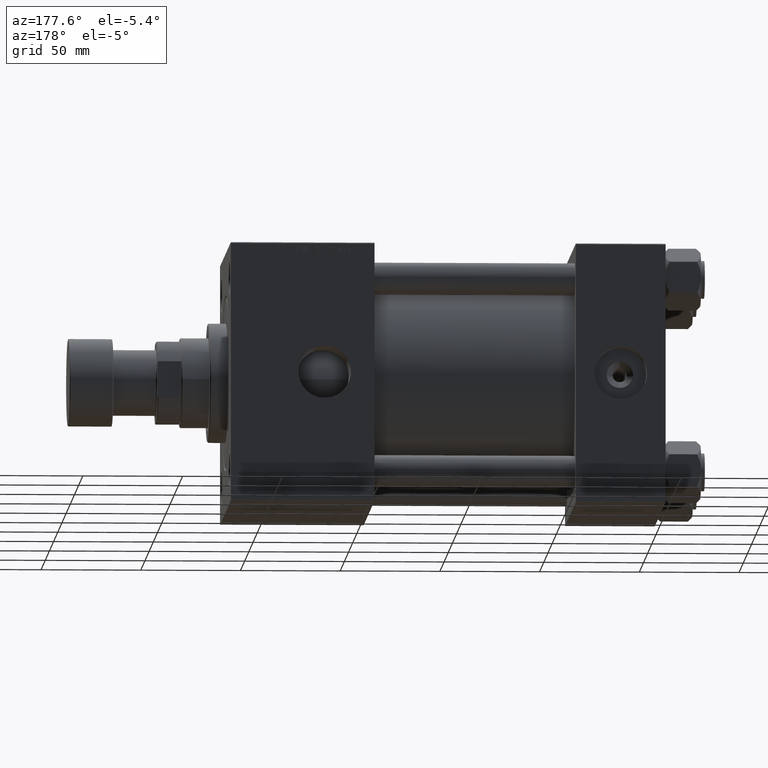
[diagram: clean part render]
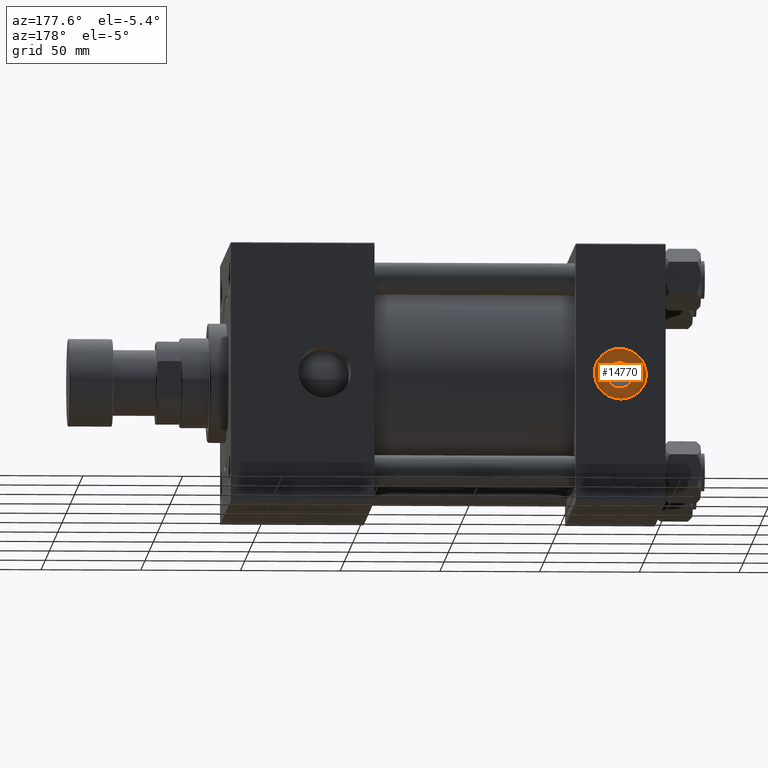
[diagram: same view with one face highlighted and labeled with its STEP entity id]
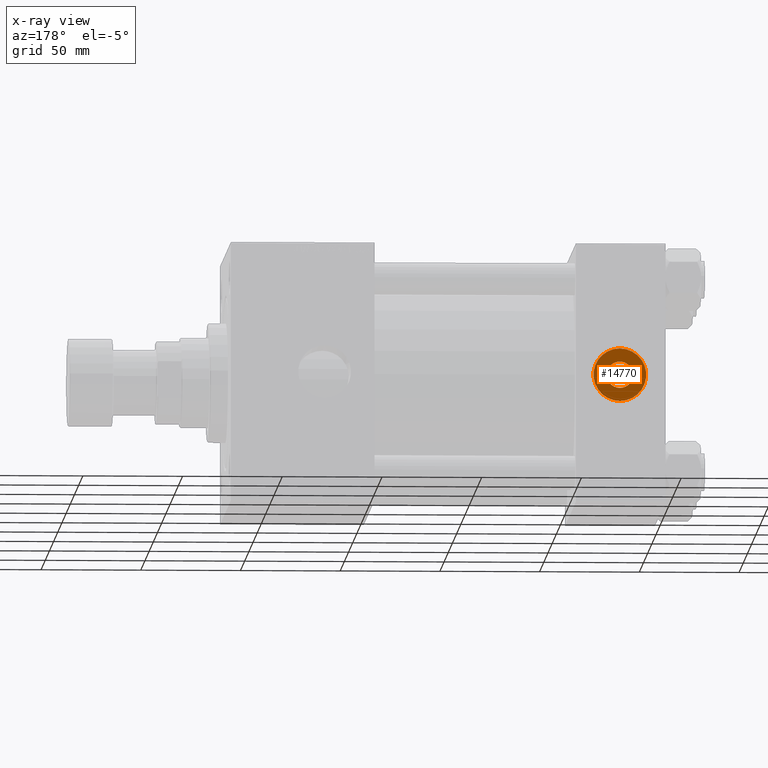
[diagram: x-ray of the same camera — body ghosted, the highlighted face saturated]
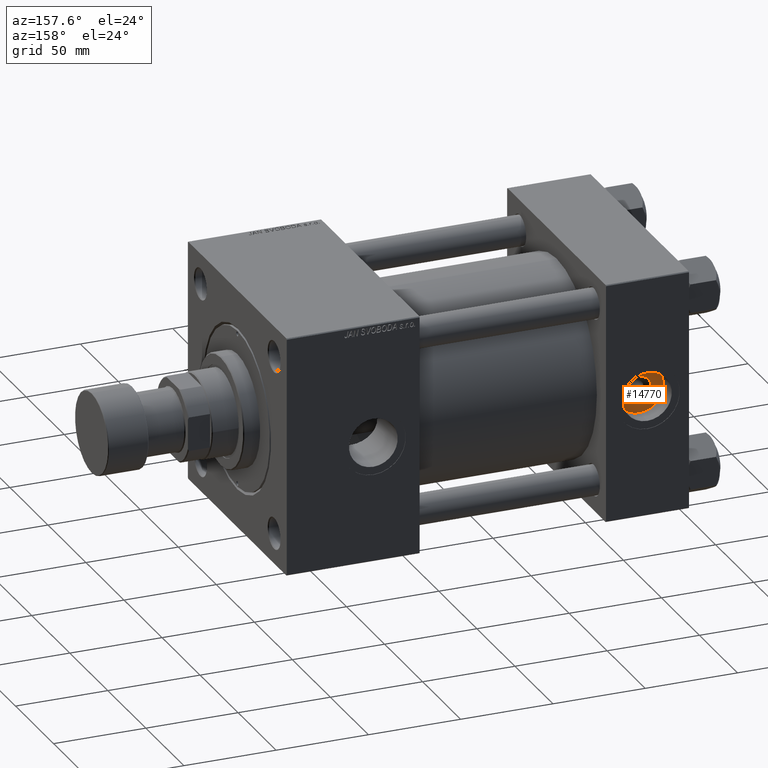
[diagram: same view with one face highlighted and labeled with its STEP entity id]
A machine part, auxiliary view. The second image highlights one B-rep face of the part: STEP entity #14770.
The next image is the same camera in x-ray: the body ghosted, the highlighted face saturated — about 0% of this face is hidden behind the body in this view.
A second angle (auxiliary view) of the same face is appended — the face is thin or edge-on in the first view.
In plain terms, the highlighted planar face has unit normal (0, 1, 0).
Its self-contained STEP definition (entity closure, byte-faithful):
#184 = DIRECTION ( 'NONE',  ( 0.000000000000000000, 0.000000000000000000, 1.000000000000000000 ) ) ;
#1895 = EDGE_CURVE ( 'NONE', #12275, #6060, #15770, .T. ) ;
#3516 = AXIS2_PLACEMENT_3D ( 'NONE', #21446, #17317, #33085 ) ;
#3756 = EDGE_CURVE ( 'NONE', #23208, #47187, #41488, .T. ) ;
#4254 = CARTESIAN_POINT ( 'NONE',  ( 22.50000000000000000, 53.99999999999999289, -13.22000000000000419 ) ) ;
#4735 = ORIENTED_EDGE ( 'NONE', *, *, #1895, .T. ) ;
#5101 = DIRECTION ( 'NONE',  ( -0.000000000000000000, -1.000000000000000000, -0.000000000000000000 ) ) ;
#5355 = CARTESIAN_POINT ( 'NONE',  ( 22.50000000000000000, 53.99999999999999289, 0.000000000000000000 ) ) ;
#5614 = ORIENTED_EDGE ( 'NONE', *, *, #42098, .T. ) ;
#6060 = VERTEX_POINT ( 'NONE', #16334 ) ;
#6414 = DIRECTION ( 'NONE',  ( -0.000000000000000000, -1.000000000000000000, -0.000000000000000000 ) ) ;
#6431 = CARTESIAN_POINT ( 'NONE',  ( 22.50000000000000000, 53.99999999999999289, 0.000000000000000000 ) ) ;
#7501 = AXIS2_PLACEMENT_3D ( 'NONE', #14191, #6414, #38014 ) ;
#8720 = FACE_BOUND ( 'NONE', #11643, .T. ) ;
#8732 = CARTESIAN_POINT ( 'NONE',  ( 22.50000000000000000, 53.99999999999999289, 0.000000000000000000 ) ) ;
#9292 = CIRCLE ( 'NONE', #3516, 13.22000000000000419 ) ;
#11643 = EDGE_LOOP ( 'NONE', ( #4735, #5614 ) ) ;
#12275 = VERTEX_POINT ( 'NONE', #32051 ) ;
#14191 = CARTESIAN_POINT ( 'NONE',  ( 22.50000000000000000, 53.99999999999999289, 0.000000000000000000 ) ) ;
#14770 = ADVANCED_FACE ( 'NONE', ( #8720, #40068 ), #40326, .T. ) ;
#15770 = CIRCLE ( 'NONE', #7501, 6.640000000000062741 ) ;
#16334 = CARTESIAN_POINT ( 'NONE',  ( 22.50000000000000000, 53.99999999999999289, -6.640000000000062741 ) ) ;
#17317 = DIRECTION ( 'NONE',  ( 0.000000000000000000, 1.000000000000000000, 0.000000000000000000 ) ) ;
#18857 = DIRECTION ( 'NONE',  ( 0.000000000000000000, 1.000000000000000000, 0.000000000000000000 ) ) ;
#21446 = CARTESIAN_POINT ( 'NONE',  ( 22.50000000000000000, 53.99999999999999289, 0.000000000000000000 ) ) ;
#23208 = VERTEX_POINT ( 'NONE', #44221 ) ;
#23371 = ORIENTED_EDGE ( 'NONE', *, *, #3756, .T. ) ;
#24766 = DIRECTION ( 'NONE',  ( 0.000000000000000000, -0.000000000000000000, 1.000000000000000000 ) ) ;
#27880 = DIRECTION ( 'NONE',  ( 0.000000000000000000, 1.000000000000000000, 0.000000000000000000 ) ) ;
#30160 = AXIS2_PLACEMENT_3D ( 'NONE', #5355, #27880, #24766 ) ;
#31893 = AXIS2_PLACEMENT_3D ( 'NONE', #8732, #5101, #184 ) ;
#32051 = CARTESIAN_POINT ( 'NONE',  ( 22.50000000000000000, 53.99999999999999289, 6.640000000000062741 ) ) ;
#33085 = DIRECTION ( 'NONE',  ( 0.000000000000000000, 0.000000000000000000, 1.000000000000000000 ) ) ;
#33539 = CIRCLE ( 'NONE', #31893, 6.640000000000062741 ) ;
#34473 = EDGE_LOOP ( 'NONE', ( #23371, #48722 ) ) ;
#34636 = DIRECTION ( 'NONE',  ( 0.000000000000000000, 0.000000000000000000, 1.000000000000000000 ) ) ;
#35380 = EDGE_CURVE ( 'NONE', #47187, #23208, #9292, .T. ) ;
#38014 = DIRECTION ( 'NONE',  ( 0.000000000000000000, 0.000000000000000000, 1.000000000000000000 ) ) ;
#40068 = FACE_OUTER_BOUND ( 'NONE', #34473, .T. ) ;
#40326 = PLANE ( 'NONE',  #30160 ) ;
#41488 = CIRCLE ( 'NONE', #48098, 13.22000000000000419 ) ;
#42098 = EDGE_CURVE ( 'NONE', #6060, #12275, #33539, .T. ) ;
#44221 = CARTESIAN_POINT ( 'NONE',  ( 22.50000000000000000, 53.99999999999999289, 13.22000000000000419 ) ) ;
#47187 = VERTEX_POINT ( 'NONE', #4254 ) ;
#48098 = AXIS2_PLACEMENT_3D ( 'NONE', #6431, #18857, #34636 ) ;
#48722 = ORIENTED_EDGE ( 'NONE', *, *, #35380, .T. ) ;